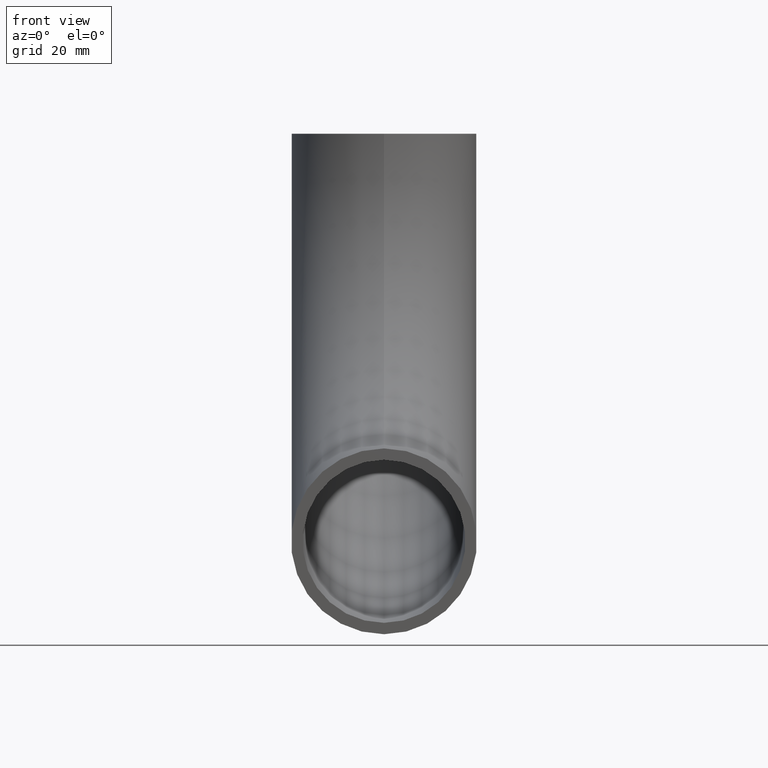
[diagram: clean part render]
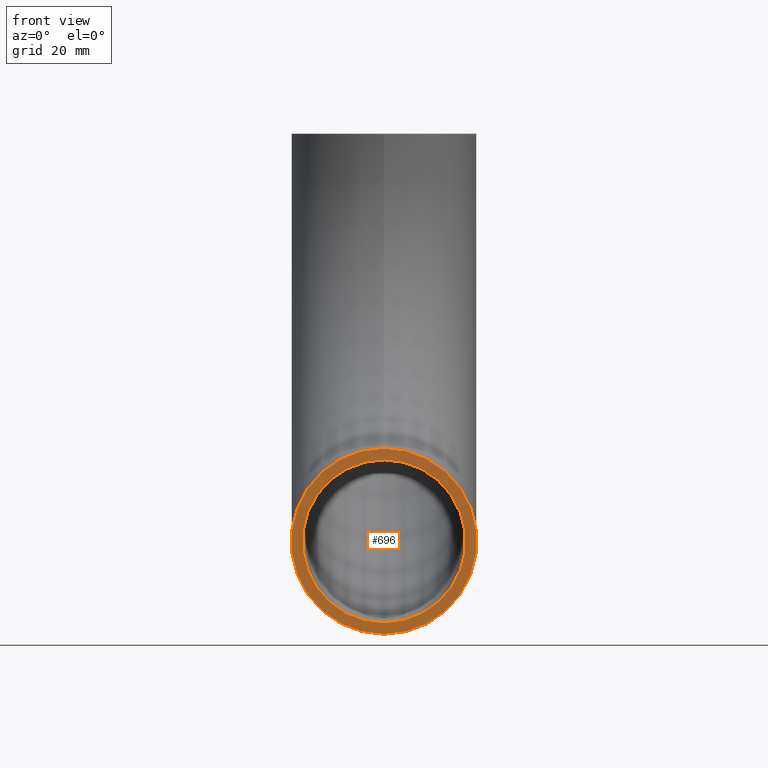
[diagram: same view with one face highlighted and labeled with its STEP entity id]
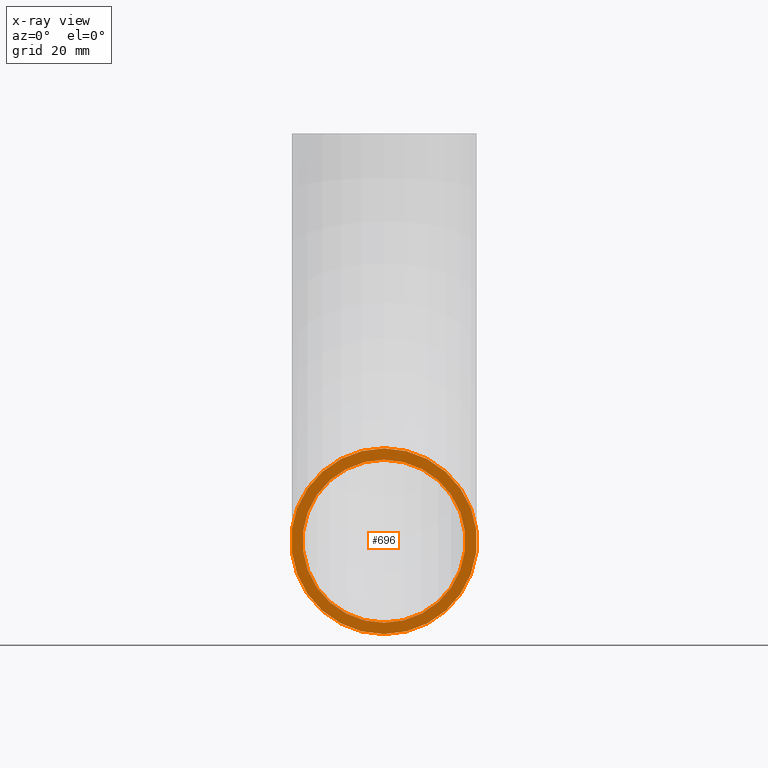
[diagram: x-ray of the same camera — body ghosted, the highlighted face saturated]
A machine part, front view. The second image highlights one B-rep face of the part: STEP entity #696.
The next image is the same camera in x-ray: the body ghosted, the highlighted face saturated — about 0% of this face is hidden behind the body in this view.
In plain terms, the highlighted planar face has unit normal (0, 1, 0).
Its self-contained STEP definition (entity closure, byte-faithful):
#696 = ADVANCED_FACE ( 'NONE', ( #5004, #7102 ), #5514, .F. ) ;
#847 = DIRECTION ( 'NONE',  ( 0.000000000000000000, 1.000000000000000000, 0.000000000000000000 ) ) ;
#1079 = CARTESIAN_POINT ( 'NONE',  ( 0.000000000000000000, 0.000000000000000000, -93.00000000000000000 ) ) ;
#1367 = AXIS2_PLACEMENT_3D ( 'NONE', #2570, #847, #10704 ) ;
#2055 = DIRECTION ( 'NONE',  ( 0.000000000000000000, 1.000000000000000000, 0.000000000000000000 ) ) ;
#2570 = CARTESIAN_POINT ( 'NONE',  ( 0.000000000000000000, 0.000000000000000000, -93.00000000000000000 ) ) ;
#3559 = VERTEX_POINT ( 'NONE', #10149 ) ;
#3812 = EDGE_CURVE ( 'NONE', #3559, #3559, #7907, .T. ) ;
#4687 = DIRECTION ( 'NONE',  ( 0.000000000000000000, 1.000000000000000000, 0.000000000000000000 ) ) ;
#4898 = AXIS2_PLACEMENT_3D ( 'NONE', #10699, #4687, #6281 ) ;
#5004 = FACE_BOUND ( 'NONE', #8653, .T. ) ;
#5084 = VERTEX_POINT ( 'NONE', #8376 ) ;
#5514 = PLANE ( 'NONE',  #11085 ) ;
#5788 = EDGE_LOOP ( 'NONE', ( #8840 ) ) ;
#6245 = EDGE_CURVE ( 'NONE', #5084, #5084, #9600, .T. ) ;
#6281 = DIRECTION ( 'NONE',  ( 0.000000000000000000, 0.000000000000000000, 1.000000000000000000 ) ) ;
#7102 = FACE_OUTER_BOUND ( 'NONE', #5788, .T. ) ;
#7907 = CIRCLE ( 'NONE', #4898, 21.19999999999999574 ) ;
#8376 = CARTESIAN_POINT ( 'NONE',  ( 0.000000000000000000, 0.000000000000000000, -74.39999999999999147 ) ) ;
#8653 = EDGE_LOOP ( 'NONE', ( #8697 ) ) ;
#8697 = ORIENTED_EDGE ( 'NONE', *, *, #6245, .T. ) ;
#8840 = ORIENTED_EDGE ( 'NONE', *, *, #3812, .F. ) ;
#9179 = DIRECTION ( 'NONE',  ( 0.000000000000000000, -0.000000000000000000, 1.000000000000000000 ) ) ;
#9600 = CIRCLE ( 'NONE', #1367, 18.60000000000000497 ) ;
#10149 = CARTESIAN_POINT ( 'NONE',  ( 0.000000000000000000, 0.000000000000000000, -71.79999999999999716 ) ) ;
#10699 = CARTESIAN_POINT ( 'NONE',  ( 0.000000000000000000, 0.000000000000000000, -93.00000000000000000 ) ) ;
#10704 = DIRECTION ( 'NONE',  ( 0.000000000000000000, 0.000000000000000000, 1.000000000000000000 ) ) ;
#11085 = AXIS2_PLACEMENT_3D ( 'NONE', #1079, #2055, #9179 ) ;